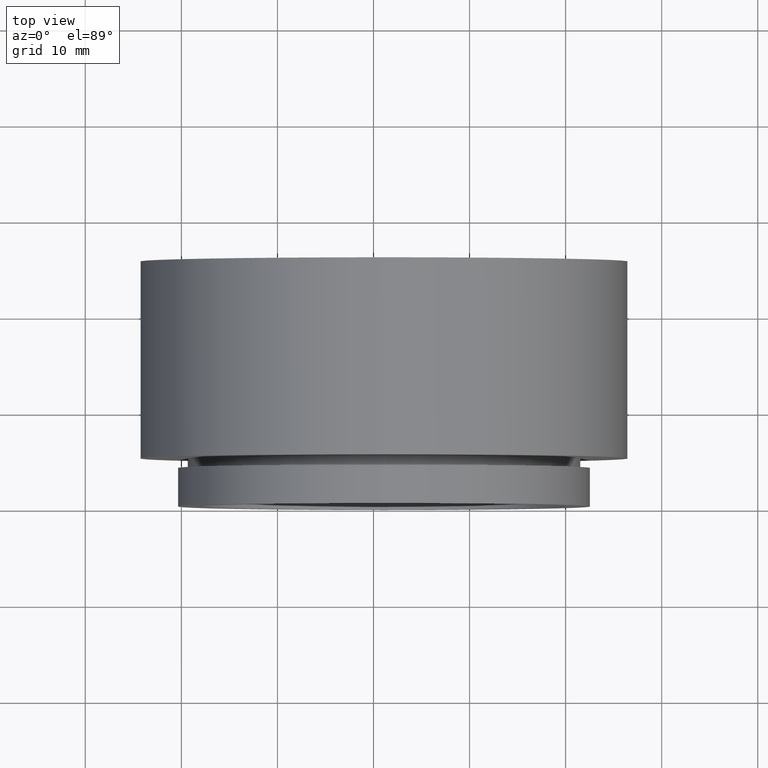
[diagram: clean part render]
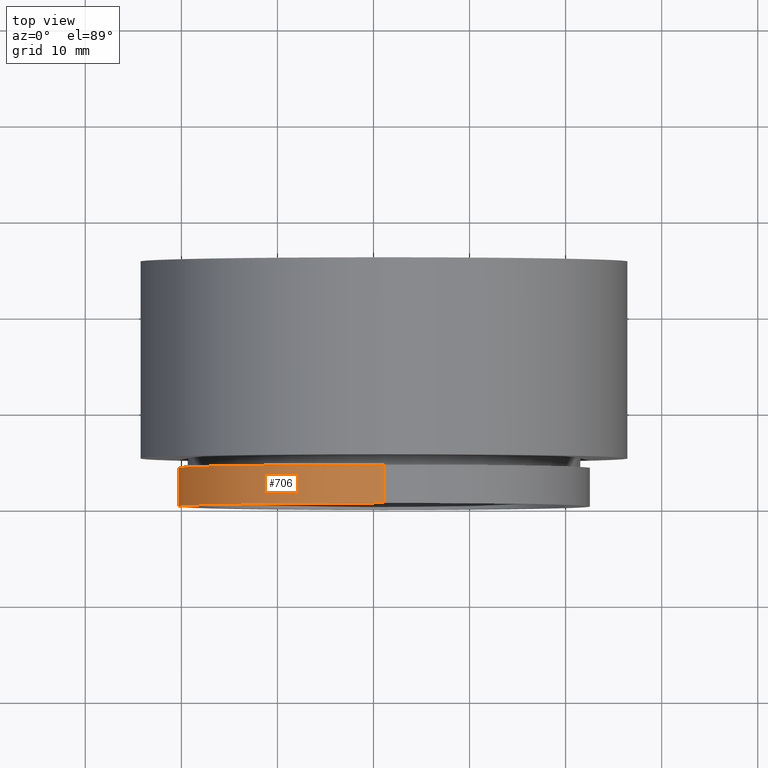
[diagram: same view with one face highlighted and labeled with its STEP entity id]
A machine part, top view. The second image highlights one B-rep face of the part: STEP entity #706.
In plain terms, the highlighted cylindrical surface (partial cylindrical patch) has radius 21.5 mm, axis along (0, -1, 0).
Its self-contained STEP definition (entity closure, byte-faithful):
#5 = CARTESIAN_POINT ( 'NONE',  ( -8.905217641199635992, -29.96199424963321079, 26.65036394347448123 ) ) ;
#14 = EDGE_CURVE ( 'NONE', #1312, #449, #860, .T. ) ;
#71 = VECTOR ( 'NONE', #770, 1000.000000000000000 ) ;
#96 = DIRECTION ( 'NONE',  ( 0.000000000000000000, -1.000000000000000000, 0.000000000000000000 ) ) ;
#165 = EDGE_LOOP ( 'NONE', ( #469, #578, #244, #322 ) ) ;
#180 = DIRECTION ( 'NONE',  ( 0.000000000000000000, 0.000000000000000000, -1.000000000000000000 ) ) ;
#181 = EDGE_CURVE ( 'NONE', #1301, #1312, #297, .T. ) ;
#190 = LINE ( 'NONE', #279, #636 ) ;
#244 = ORIENTED_EDGE ( 'NONE', *, *, #14, .T. ) ;
#279 = CARTESIAN_POINT ( 'NONE',  ( -8.905217641199632439, -29.96199424963321079, 48.15036394347448123 ) ) ;
#297 = CIRCLE ( 'NONE', #1087, 21.50000000000000000 ) ;
#322 = ORIENTED_EDGE ( 'NONE', *, *, #414, .F. ) ;
#377 = CARTESIAN_POINT ( 'NONE',  ( -8.905217641199632439, -25.96199424963321079, 48.15036394347448123 ) ) ;
#405 = CARTESIAN_POINT ( 'NONE',  ( -8.905217641199632439, -29.96199424963321079, 48.15036394347448123 ) ) ;
#409 = AXIS2_PLACEMENT_3D ( 'NONE', #976, #1199, #696 ) ;
#414 = EDGE_CURVE ( 'NONE', #422, #449, #1117, .T. ) ;
#422 = VERTEX_POINT ( 'NONE', #405 ) ;
#449 = VERTEX_POINT ( 'NONE', #459 ) ;
#459 = CARTESIAN_POINT ( 'NONE',  ( -8.905217641199635992, -29.96199424963321079, 5.150363943474483897 ) ) ;
#469 = ORIENTED_EDGE ( 'NONE', *, *, #1222, .F. ) ;
#491 = CARTESIAN_POINT ( 'NONE',  ( -8.905217641199635992, -25.96199424963321079, 26.65036394347448123 ) ) ;
#578 = ORIENTED_EDGE ( 'NONE', *, *, #181, .T. ) ;
#611 = DIRECTION ( 'NONE',  ( 0.000000000000000000, 0.000000000000000000, -1.000000000000000000 ) ) ;
#626 = CARTESIAN_POINT ( 'NONE',  ( -8.905217641199635992, -25.96199424963321079, 5.150363943474483897 ) ) ;
#636 = VECTOR ( 'NONE', #702, 1000.000000000000000 ) ;
#696 = DIRECTION ( 'NONE',  ( 0.000000000000000000, 0.000000000000000000, -1.000000000000000000 ) ) ;
#702 = DIRECTION ( 'NONE',  ( 0.000000000000000000, -1.000000000000000000, 0.000000000000000000 ) ) ;
#706 = ADVANCED_FACE ( 'NONE', ( #790 ), #968, .T. ) ;
#770 = DIRECTION ( 'NONE',  ( 0.000000000000000000, -1.000000000000000000, 0.000000000000000000 ) ) ;
#790 = FACE_OUTER_BOUND ( 'NONE', #165, .T. ) ;
#860 = LINE ( 'NONE', #1269, #71 ) ;
#878 = AXIS2_PLACEMENT_3D ( 'NONE', #5, #1213, #611 ) ;
#968 = CYLINDRICAL_SURFACE ( 'NONE', #409, 21.50000000000000000 ) ;
#976 = CARTESIAN_POINT ( 'NONE',  ( -8.905217641199635992, -29.96199424963321079, 26.65036394347448123 ) ) ;
#1087 = AXIS2_PLACEMENT_3D ( 'NONE', #491, #96, #180 ) ;
#1117 = CIRCLE ( 'NONE', #878, 21.50000000000000000 ) ;
#1199 = DIRECTION ( 'NONE',  ( 0.000000000000000000, -1.000000000000000000, 0.000000000000000000 ) ) ;
#1213 = DIRECTION ( 'NONE',  ( 0.000000000000000000, -1.000000000000000000, 0.000000000000000000 ) ) ;
#1222 = EDGE_CURVE ( 'NONE', #1301, #422, #190, .T. ) ;
#1269 = CARTESIAN_POINT ( 'NONE',  ( -8.905217641199635992, -29.96199424963321079, 5.150363943474483897 ) ) ;
#1301 = VERTEX_POINT ( 'NONE', #377 ) ;
#1312 = VERTEX_POINT ( 'NONE', #626 ) ;